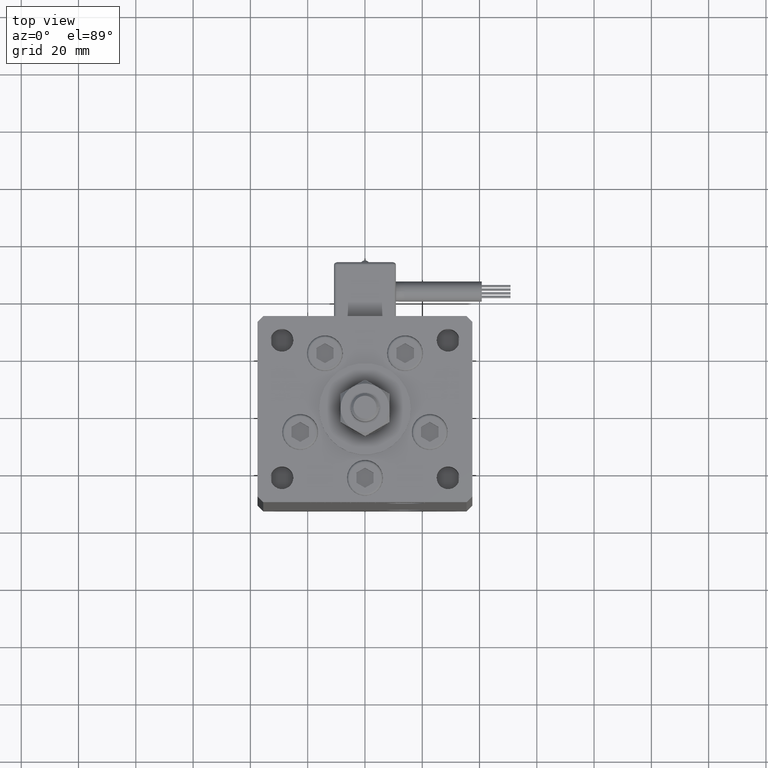
[diagram: clean part render]
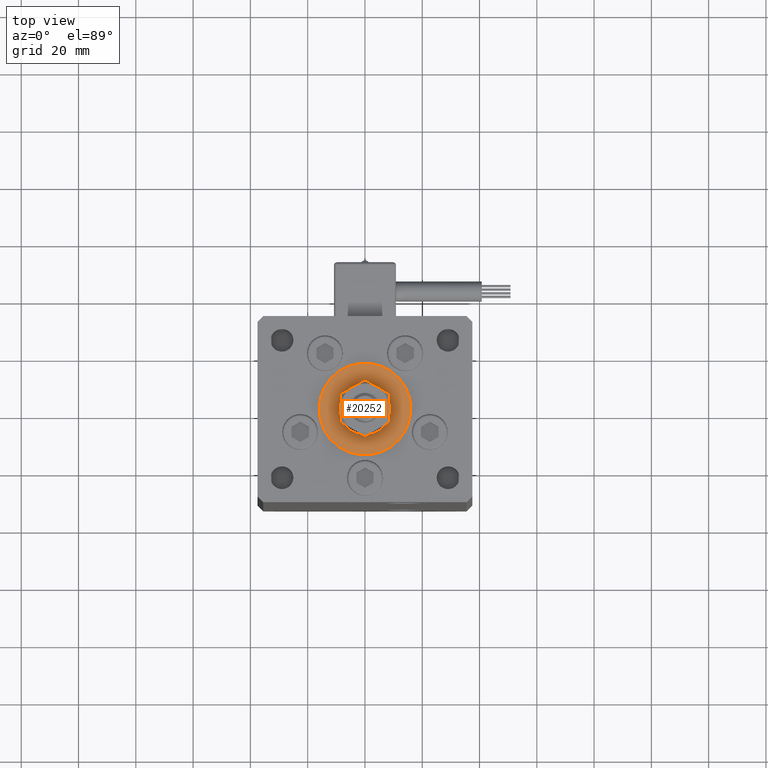
[diagram: same view with one face highlighted and labeled with its STEP entity id]
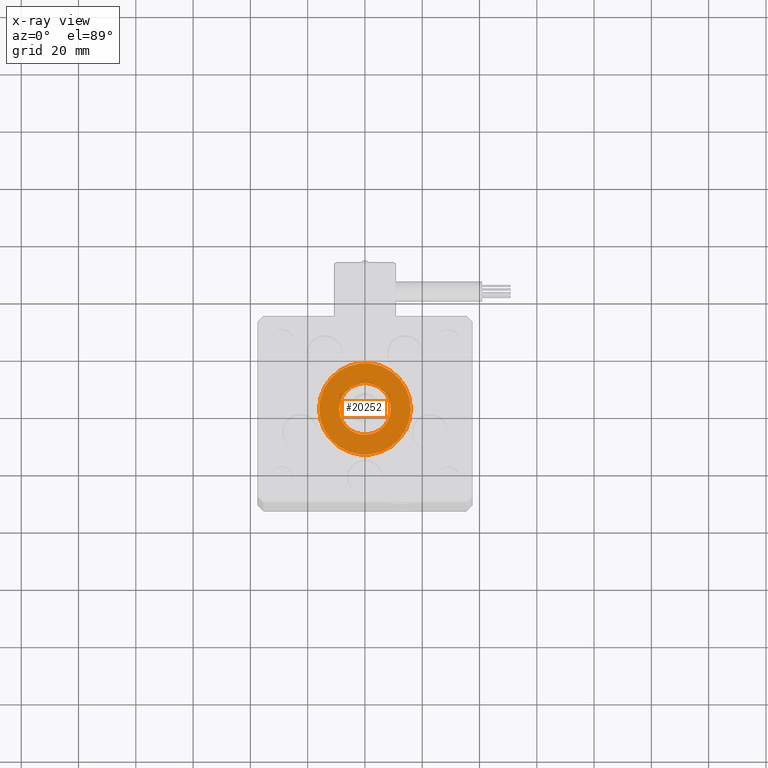
[diagram: x-ray of the same camera — body ghosted, the highlighted face saturated]
A machine part, top view. The second image highlights one B-rep face of the part: STEP entity #20252.
The next image is the same camera in x-ray: the body ghosted, the highlighted face saturated — about 0% of this face is hidden behind the body in this view.
In plain terms, the highlighted planar face has unit normal (0, 0, 1).
Its self-contained STEP definition (entity closure, byte-faithful):
#7894 = DIRECTION ( 'NONE',  ( 1.000000000000000000, 0.000000000000000000, 0.000000000000000000 ) ) ;
#9044 = PLANE ( 'NONE',  #43642 ) ;
#9217 = AXIS2_PLACEMENT_3D ( 'NONE', #11903, #29710, #7894 ) ;
#10601 = EDGE_CURVE ( 'NONE', #16244, #53666, #27776, .T. ) ;
#11903 = CARTESIAN_POINT ( 'NONE',  ( 0.000000000000000000, -6.938893903907228378E-15, 2.000000000000000000 ) ) ;
#12054 = ORIENTED_EDGE ( 'NONE', *, *, #54106, .T. ) ;
#15029 = AXIS2_PLACEMENT_3D ( 'NONE', #52306, #29943, #25359 ) ;
#16244 = VERTEX_POINT ( 'NONE', #56696 ) ;
#17542 = CARTESIAN_POINT ( 'NONE',  ( 9.000000000000000000, -6.938893903907228378E-15, 2.000000000000000000 ) ) ;
#20252 = ADVANCED_FACE ( 'NONE', ( #21959, #36008 ), #9044, .T. ) ;
#21672 = CARTESIAN_POINT ( 'NONE',  ( 0.000000000000000000, -6.938893903907228378E-15, 2.000000000000000000 ) ) ;
#21787 = DIRECTION ( 'NONE',  ( 1.000000000000000000, 0.000000000000000000, 0.000000000000000000 ) ) ;
#21959 = FACE_BOUND ( 'NONE', #29729, .T. ) ;
#22289 = DIRECTION ( 'NONE',  ( 0.000000000000000000, 0.000000000000000000, 1.000000000000000000 ) ) ;
#22832 = VERTEX_POINT ( 'NONE', #49196 ) ;
#25156 = EDGE_LOOP ( 'NONE', ( #26682, #12054 ) ) ;
#25359 = DIRECTION ( 'NONE',  ( 1.000000000000000000, 0.000000000000000000, 0.000000000000000000 ) ) ;
#26022 = CIRCLE ( 'NONE', #15029, 9.000000000000000000 ) ;
#26682 = ORIENTED_EDGE ( 'NONE', *, *, #34876, .T. ) ;
#27776 = CIRCLE ( 'NONE', #38774, 9.000000000000000000 ) ;
#29377 = CIRCLE ( 'NONE', #9217, 16.00000000000000355 ) ;
#29710 = DIRECTION ( 'NONE',  ( 0.000000000000000000, 0.000000000000000000, 1.000000000000000000 ) ) ;
#29729 = EDGE_LOOP ( 'NONE', ( #45347, #34199 ) ) ;
#29943 = DIRECTION ( 'NONE',  ( 0.000000000000000000, 0.000000000000000000, 1.000000000000000000 ) ) ;
#30128 = DIRECTION ( 'NONE',  ( 0.000000000000000000, 0.000000000000000000, 1.000000000000000000 ) ) ;
#30983 = CARTESIAN_POINT ( 'NONE',  ( 0.000000000000000000, -6.938893903907228378E-15, 2.000000000000000000 ) ) ;
#33851 = CARTESIAN_POINT ( 'NONE',  ( 0.000000000000000000, -6.938893903907228378E-15, 2.000000000000000000 ) ) ;
#34199 = ORIENTED_EDGE ( 'NONE', *, *, #10601, .F. ) ;
#34874 = DIRECTION ( 'NONE',  ( 1.000000000000000000, 0.000000000000000000, -0.000000000000000000 ) ) ;
#34876 = EDGE_CURVE ( 'NONE', #55476, #22832, #29377, .T. ) ;
#36008 = FACE_OUTER_BOUND ( 'NONE', #25156, .T. ) ;
#38774 = AXIS2_PLACEMENT_3D ( 'NONE', #30983, #30128, #21787 ) ;
#39783 = DIRECTION ( 'NONE',  ( 1.000000000000000000, 0.000000000000000000, 0.000000000000000000 ) ) ;
#42520 = EDGE_CURVE ( 'NONE', #53666, #16244, #26022, .T. ) ;
#43642 = AXIS2_PLACEMENT_3D ( 'NONE', #21672, #44328, #34874 ) ;
#44328 = DIRECTION ( 'NONE',  ( 0.000000000000000000, 0.000000000000000000, 1.000000000000000000 ) ) ;
#45347 = ORIENTED_EDGE ( 'NONE', *, *, #42520, .F. ) ;
#49196 = CARTESIAN_POINT ( 'NONE',  ( 16.00000000000000355, -4.979459025271462852E-15, 2.000000000000000000 ) ) ;
#49324 = CIRCLE ( 'NONE', #56628, 16.00000000000000355 ) ;
#50023 = CARTESIAN_POINT ( 'NONE',  ( -16.00000000000000355, -6.938893903907228378E-15, 2.000000000000000000 ) ) ;
#52306 = CARTESIAN_POINT ( 'NONE',  ( 0.000000000000000000, -6.938893903907228378E-15, 2.000000000000000000 ) ) ;
#53666 = VERTEX_POINT ( 'NONE', #17542 ) ;
#54106 = EDGE_CURVE ( 'NONE', #22832, #55476, #49324, .T. ) ;
#55476 = VERTEX_POINT ( 'NONE', #50023 ) ;
#56628 = AXIS2_PLACEMENT_3D ( 'NONE', #33851, #22289, #39783 ) ;
#56696 = CARTESIAN_POINT ( 'NONE',  ( -9.000000000000000000, -5.836711784674610467E-15, 2.000000000000000000 ) ) ;